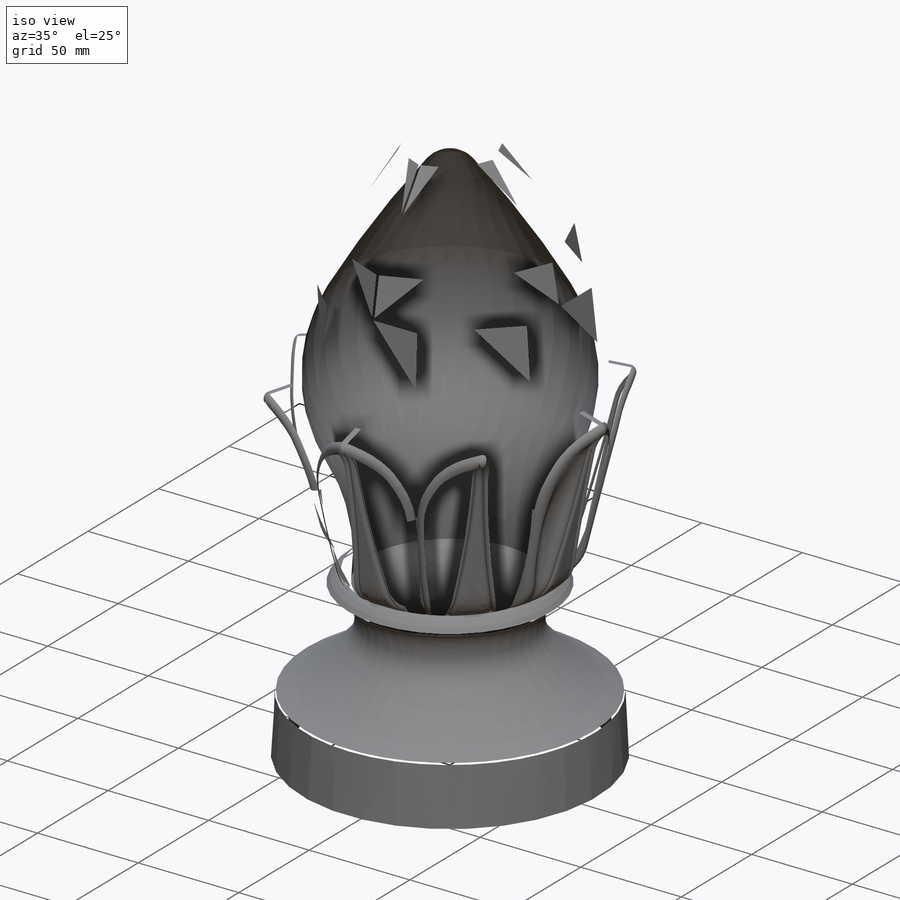
[diagram: iso view]
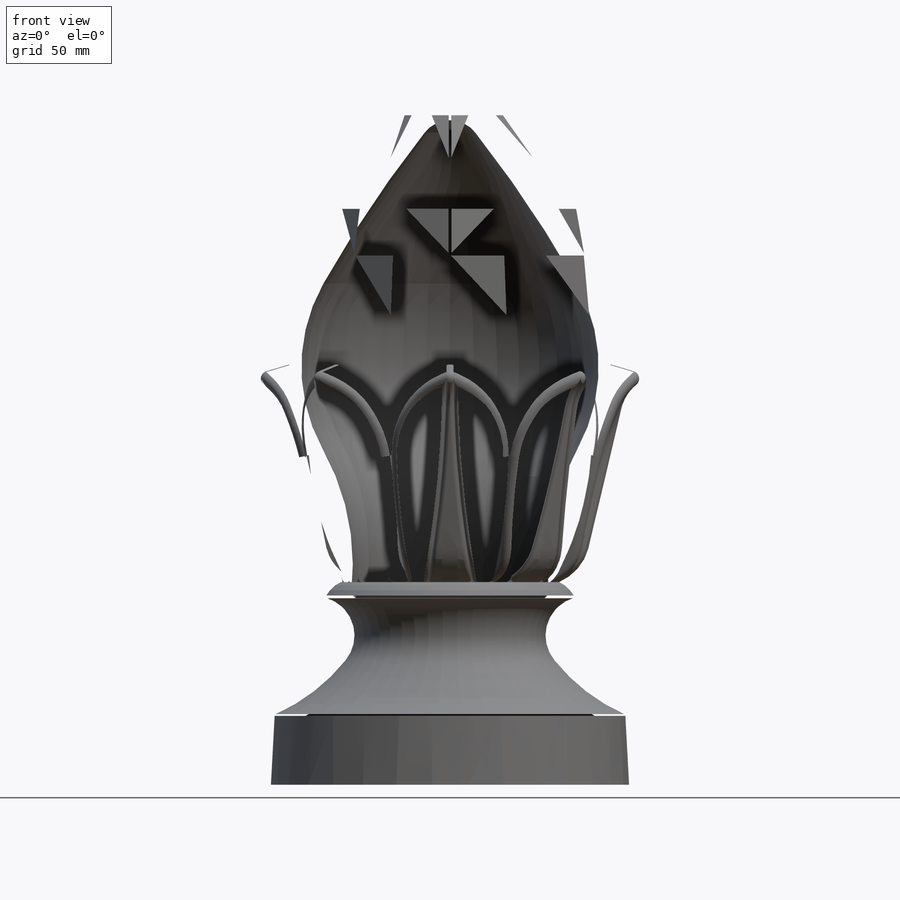
[diagram: front view]
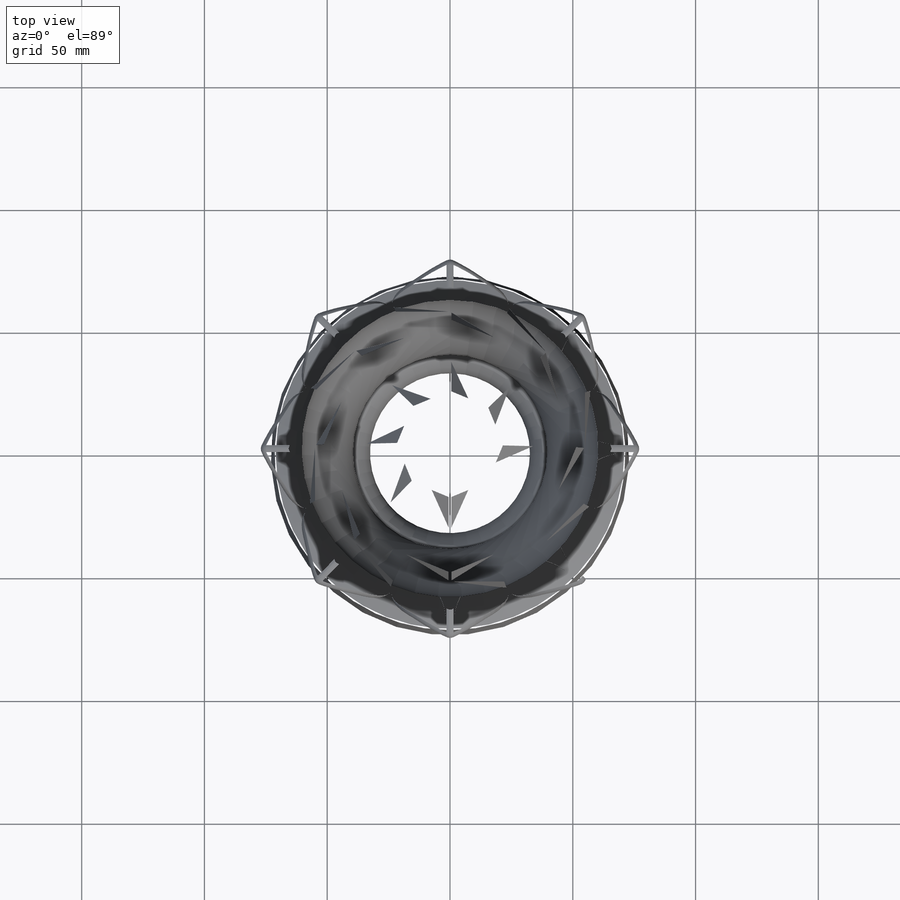
[diagram: top view]
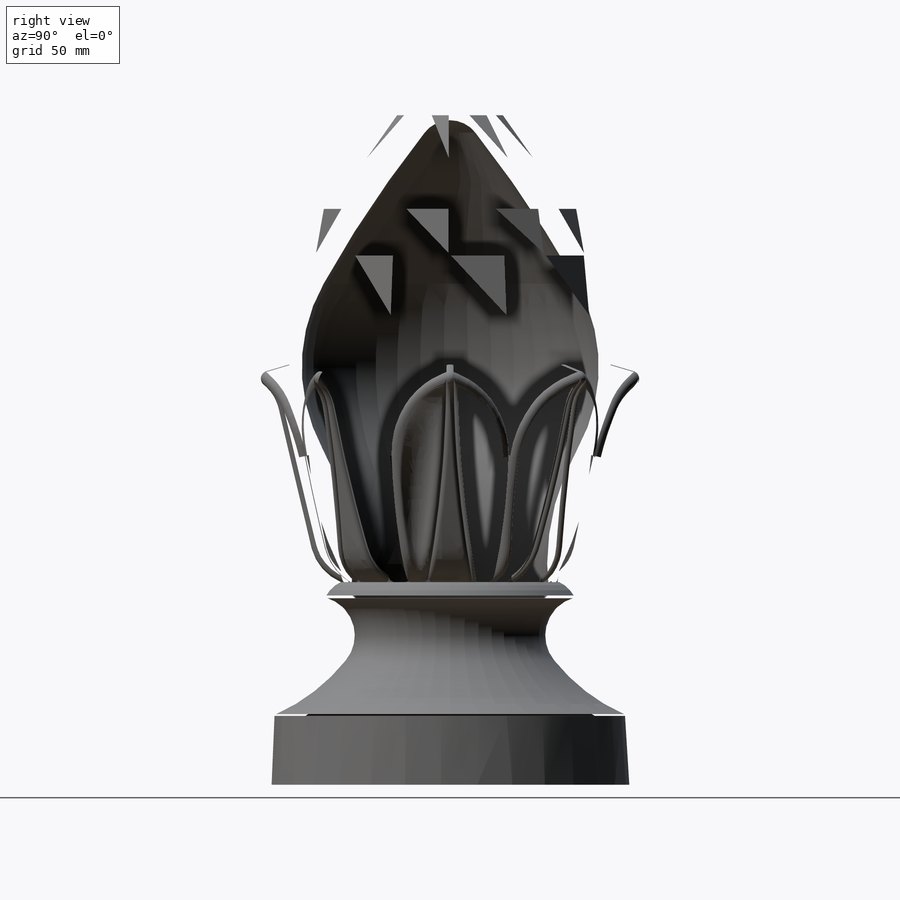
[diagram: right view]
SOLIDWORKS PART (.sldprt)
format: sldprt  version: not decoded by parser v0  size: 4,779,008 bytes
history: native  units: mm
features: sketch x23, fillet x12, plane x9, revolve x2, cut_extrude x2, cut_revolve x2, mirror x2, pattern_circular x2, material x1, surface_op x1, delete_body x1, boolean_combine x1 (+17 scaffold rows collapsed; 3 parser-record rows omitted)
feature tree (78):
  scaffold x17  (default folders/planes/origin — collapsed)
  material  "A-356 Sand Cast"
  sketch  "Sketch1"  dims[c1.D5=~17.797426mm c1.D6=15.875mm c1.D7=76.2mm c1.D11=12.7mm c1.D1=146.05mm c1.D2=28.575mm c1.D3=76.2mm c1.D4=101.6mm c2.D5=77.7875mm c2.D8=142.875mm c2.D9=6.35mm c2.D10=88.9mm c2.D12=28.575mm c3.D12=~3.17983deg]
  revolve  "Revolve1"  Angle=360deg
  plane  "Plane1"  Offset=82.55mm
  plane  "Plane2"  Offset=158.75mm
  plane  "Plane3"  Offset=190.5mm
  plane  "Plane4"  Offset=215.9mm
  plane  "Plane5"  Offset=234.95mm
  plane  "Plane6"  Offset=254mm
  plane  "Plane7"  Offset=273.05mm
  plane  "Plane8"  Offset=282.575mm
  parser-record x3  (decoder bookkeeping rows leaked as tree rows — omitted from the tree; the rows remain in map.json)
  sketch  "Sketch3"
  sketch  "Sketch4"  dims[D1=130.175mm]
  sketch  "Sketch5"  dims[D1=123.825mm]
  sketch  "Sketch6"  dims[D1=109.855mm]
  sketch  "Sketch7"  dims[D1=95.25mm]
  sketch  "Sketch8"  dims[D1=69.85mm]
  sketch  "Sketch9"  dims[D1=39.6875mm]
  sketch  "Sketch10"
  sketch  "Sketch11"  dims[D1=0.0mm]
  sketch  "Sketch12"  dims[D1=0.0mm]
  sketch  "Sketch13"  dims[D1=0.0mm]
  sketch  "Sketch14"  dims[D1=0.0mm]
  sketch  "Sketch15"  dims[D1=0.0mm]
  sketch  "Sketch16"  dims[D1=0.0mm]
  sketch  "Sketch17"
  sketch  "Sketch21"  dims[D1=19.05mm]
  plane  "Plane9"
  sketch  "Sketch22"  dims[c1.D3=304.8mm c1.D4=28.575mm c1.D1=34.925mm c1.D2=12.7mm c2.D4=38.1mm c2.D2=47.625mm]
  revolve  "Revolve3"  Angle=180deg
  sketch  "Sketch25"
  cut_extrude  "Cut-Extrude2"  [1 undecoded]
  sketch  "Sketch23"  dims[D1=19.05mm D2=63.5mm D3=76.2mm D4=15.875mm D5=~35.728113mm]
  cut_extrude  "Cut-Extrude1"  [1 undecoded]
  sketch  "Sketch24"  dims[D1=0.0mm]
  cut_revolve  "Cut-Revolve2"  Angle=360deg
  fillet  "Fillet7"  Radius=3.175mm
  sketch  "Sketch26"  dims[D1=1.5875mm]
  surface_op  "Surface-Extrude2"
  mirror  "Mirror2"
  delete_body  "Body-Delete1"
  fillet  "Fillet5"  Radius=1.5875mm
  fillet  "Fillet6"  Radius=1.984375mm
  mirror  "Mirror3"
  boolean_combine  "Combine2"
  pattern_circular  "CirPattern2"  Count=8 Angle=360deg
  sketch  "Sketch28"  dims[D1=6.35mm]
  cut_revolve  "Cut-Revolve3"  Angle=360deg
  pattern_circular  "Combine3"  [2 undecoded]
  fillet  "Fillet8"  Radius=1.5875mm
  fillet  "Fillet9"  Radius=1.5875mm
  fillet  "Fillet11"  Radius=1.5875mm
  fillet  "Fillet13"  Radius=1.5875mm
  fillet  "Fillet15"  Radius=1.5875mm
  fillet  "Fillet16"  Radius=1.5875mm
  fillet  "Fillet17"  Radius=1.5875mm
  fillet  "Fillet18"  Radius=1.524mm
  fillet  "Fillet19"  Radius=0.79375mm
decode coverage: 36 of 48 modeling features carry decoded parameters
note: ~ marks probable driven/reference dimensions
note: 4 parameter values undecoded
note: suppression state not decoded; provenance and decode notes live in map.json
